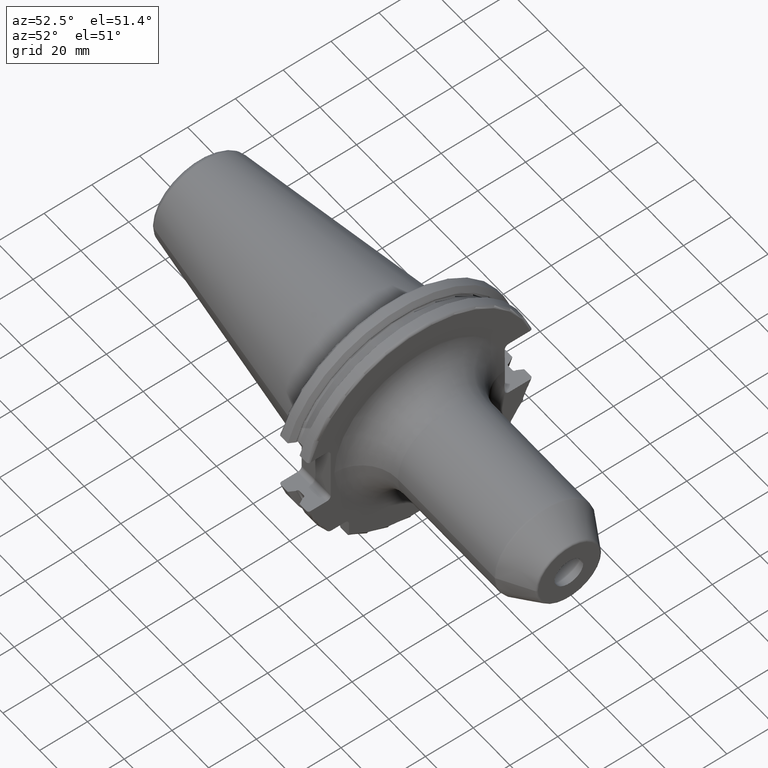
[diagram: clean part render]
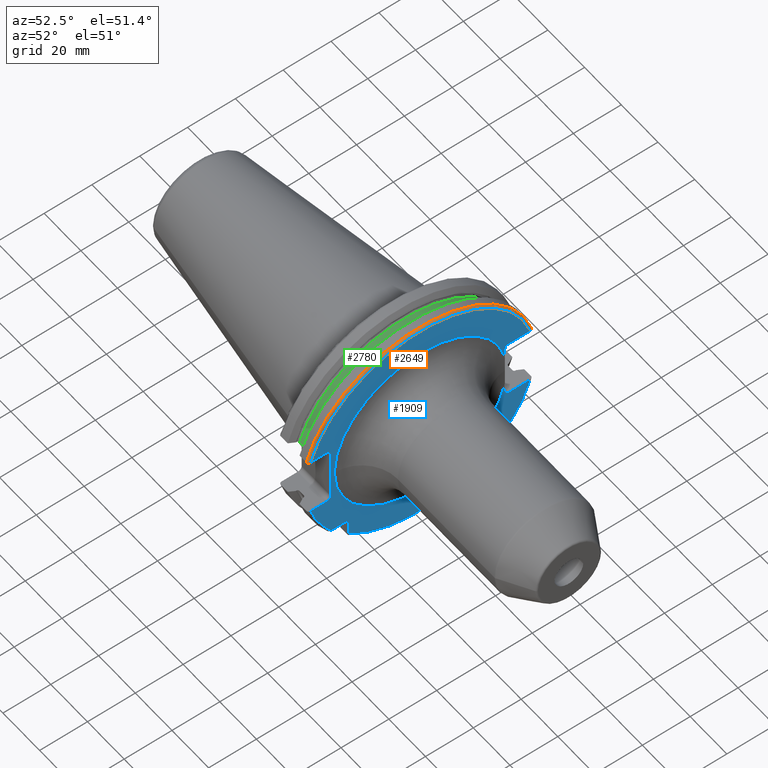
[diagram: same view with three faces highlighted in distinct colors, each labeled with its STEP entity id]
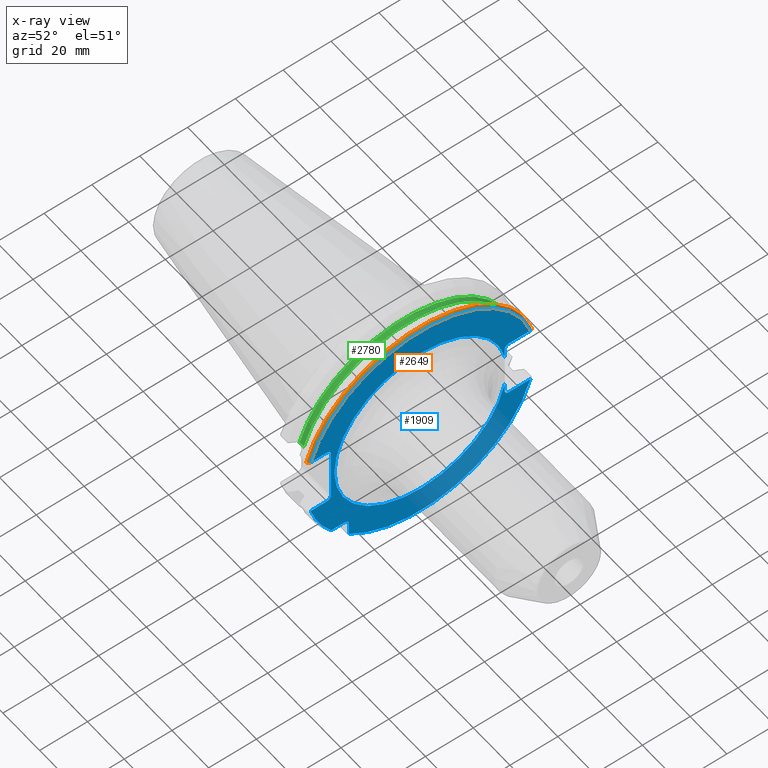
[diagram: x-ray of the same camera — body ghosted, the three highlighted faces saturated]
A machine part, auxiliary view with three faces highlighted in distinct colors.
The next image is the same camera in x-ray (body ghosted, the three faces saturated) — at least one of them is partly hidden behind the body in this view.
Their STEP definitions:

[orange] entity #2649 — the highlighted toroidal blend (fillet) surface has major radius 47.7375 mm and minor (blend) radius 1 mm.
#799=CARTESIAN_POINT('',(1.905E1,4.596149373389E1,1.29E1));
#800=CARTESIAN_POINT('',(1.905E1,4.604025341545E1,1.29E1));
#801=CARTESIAN_POINT('',(1.903319704314E1,4.619325673207E1,1.29E1));
#802=CARTESIAN_POINT('',(1.895943574721E1,4.641382557540E1,1.29E1));
#803=CARTESIAN_POINT('',(1.884029019608E1,4.661163569902E1,1.29E1));
#804=CARTESIAN_POINT('',(1.868162992187E1,4.677744958982E1,1.29E1));
#805=CARTESIAN_POINT('',(1.849033887272E1,4.690323680095E1,1.29E1));
#806=CARTESIAN_POINT('',(1.827565953653E1,4.698148434228E1,1.29E1));
#807=CARTESIAN_POINT('',(1.812673203795E1,4.699929686974E1,1.29E1));
#808=CARTESIAN_POINT('',(1.805E1,4.699929686974E1,1.29E1));
#810=CARTESIAN_POINT('',(1.905E1,0.E0,0.E0));
#811=DIRECTION('',(1.E0,0.E0,0.E0));
#812=DIRECTION('',(0.E0,9.627964123359E-1,2.702278083268E-1));
#813=AXIS2_PLACEMENT_3D('',#810,#811,#812);
#815=CARTESIAN_POINT('',(1.805E1,-4.699929686974E1,1.29E1));
#816=CARTESIAN_POINT('',(1.812676342368E1,-4.699929686974E1,1.29E1));
#817=CARTESIAN_POINT('',(1.827575329770E1,-4.698147245914E1,1.29E1));
#818=CARTESIAN_POINT('',(1.849056832427E1,-4.690313408822E1,1.29E1));
#819=CARTESIAN_POINT('',(1.868190698842E1,-4.677722381974E1,1.29E1));
#820=CARTESIAN_POINT('',(1.884050497536E1,-4.661134760606E1,1.29E1));
#821=CARTESIAN_POINT('',(1.895953365851E1,-4.641358752589E1,1.29E1));
#822=CARTESIAN_POINT('',(1.903320906929E1,-4.619315655817E1,1.29E1));
#823=CARTESIAN_POINT('',(1.905E1,-4.604021961607E1,1.29E1));
#824=CARTESIAN_POINT('',(1.905E1,-4.596149373389E1,1.29E1));
#843=CARTESIAN_POINT('',(1.805E1,0.E0,0.E0));
#844=DIRECTION('',(1.E0,0.E0,0.E0));
#845=DIRECTION('',(0.E0,9.643354064066E-1,2.646832521159E-1));
#846=AXIS2_PLACEMENT_3D('',#843,#844,#845);
#1541=CARTESIAN_POINT('',(1.805E1,4.699929686974E1,1.29E1));
#1542=VERTEX_POINT('',#1541);
#1545=CARTESIAN_POINT('',(1.805E1,-4.699929686974E1,1.29E1));
#1546=VERTEX_POINT('',#1545);
#1558=VERTEX_POINT('',#799);
#1559=VERTEX_POINT('',#824);
#2637=CARTESIAN_POINT('',(1.805E1,0.E0,0.E0));
#2638=DIRECTION('',(1.E0,0.E0,0.E0));
#2639=DIRECTION('',(0.E0,-1.E0,0.E0));
#2640=AXIS2_PLACEMENT_3D('',#2637,#2638,#2639);
#2641=TOROIDAL_SURFACE('',#2640,4.77375E1,1.E0);
#2642=ORIENTED_EDGE('',*,*,#2600,.F.);
#2643=ORIENTED_EDGE('',*,*,#1898,.T.);
#2644=ORIENTED_EDGE('',*,*,#2263,.F.);
#2646=ORIENTED_EDGE('',*,*,#2645,.F.);
#2647=EDGE_LOOP('',(#2642,#2643,#2644,#2646));
#2648=FACE_OUTER_BOUND('',#2647,.F.);
#2649=ADVANCED_FACE('',(#2648),#2641,.T.);
#809=B_SPLINE_CURVE_WITH_KNOTS('',3,(#799,#800,#801,#802,#803,#804,#805,#806,
#807,#808),.UNSPECIFIED.,.F.,.F.,(4,1,1,1,1,1,1,4),(0.E0,1.428571428571E-1,
2.857142857143E-1,4.285714285714E-1,5.714285714286E-1,7.142857142857E-1,
8.571428571429E-1,1.E0),.UNSPECIFIED.);
#814=CIRCLE('',#813,4.77375E1);
#825=B_SPLINE_CURVE_WITH_KNOTS('',3,(#815,#816,#817,#818,#819,#820,#821,#822,
#823,#824),.UNSPECIFIED.,.F.,.F.,(4,1,1,1,1,1,1,4),(0.E0,1.428571428571E-1,
2.857142857143E-1,4.285714285714E-1,5.714285714286E-1,7.142857142857E-1,
8.571428571429E-1,1.E0),.UNSPECIFIED.);
#847=CIRCLE('',#846,4.87375E1);
#1898=EDGE_CURVE('',#1558,#1559,#814,.T.);
#2263=EDGE_CURVE('',#1546,#1559,#825,.T.);
#2600=EDGE_CURVE('',#1558,#1542,#809,.T.);
#2645=EDGE_CURVE('',#1542,#1546,#847,.T.);

[blue] entity #1909 — the highlighted planar face has unit normal (1, 0, 0).
#130=CARTESIAN_POINT('',(1.905E1,0.E0,0.E0));
#131=DIRECTION('',(1.E0,0.E0,0.E0));
#132=DIRECTION('',(0.E0,-1.E0,0.E0));
#133=AXIS2_PLACEMENT_3D('',#130,#131,#132);
#135=DIRECTION('',(0.E0,1.519625490271E-6,-9.999999999988E-1));
#136=VECTOR('',#135,4.084749348897E0);
#137=CARTESIAN_POINT('',(1.905E1,3.529999379271E1,-7.065250651108E0));
#138=LINE('',#137,#136);
#139=DIRECTION('',(0.E0,-1.E0,0.E0));
#140=VECTOR('',#139,8.911493733886E0);
#141=CARTESIAN_POINT('',(1.905E1,4.596149373389E1,-1.29E1));
#142=LINE('',#141,#140);
#143=DIRECTION('',(0.E0,0.E0,1.E0));
#144=VECTOR('',#143,5.653810627237E0);
#145=CARTESIAN_POINT('',(1.905E1,-2.985E1,-3.725381062724E1));
#146=LINE('',#145,#144);
#147=DIRECTION('',(0.E0,-1.E0,0.E0));
#148=VECTOR('',#147,5.653810627237E0);
#149=CARTESIAN_POINT('',(1.905E1,-3.16E1,-2.985E1));
#150=LINE('',#149,#148);
#151=DIRECTION('',(0.E0,1.E0,0.E0));
#152=VECTOR('',#151,6.711493733886E0);
#153=CARTESIAN_POINT('',(1.905E1,-4.596149373389E1,-1.29E1));
#154=LINE('',#153,#152);
#155=DIRECTION('',(0.E0,0.E0,1.E0));
#156=VECTOR('',#155,2.23E1);
#157=CARTESIAN_POINT('',(1.905E1,-3.75E1,-1.115E1));
#158=LINE('',#157,#156);
#159=DIRECTION('',(0.E0,1.E0,0.E0));
#160=VECTOR('',#159,6.711493733886E0);
#161=CARTESIAN_POINT('',(1.905E1,-4.596149373389E1,1.29E1));
#162=LINE('',#161,#160);
#163=DIRECTION('',(0.E0,-1.E0,0.E0));
#164=VECTOR('',#163,8.911493733886E0);
#165=CARTESIAN_POINT('',(1.905E1,4.596149373389E1,1.29E1));
#166=LINE('',#165,#164);
#167=DIRECTION('',(0.E0,7.373400138712E-7,-9.999999999997E-1));
#168=VECTOR('',#167,4.085116584148E0);
#169=CARTESIAN_POINT('',(1.905E1,3.53E1,1.115E1));
#170=LINE('',#169,#168);
#171=CARTESIAN_POINT('',(1.905E1,0.E0,0.E0));
#172=DIRECTION('',(1.E0,0.E0,0.E0));
#173=DIRECTION('',(0.E0,9.805523887173E-1,1.962575170046E-1));
#174=AXIS2_PLACEMENT_3D('',#171,#172,#173);
#431=CARTESIAN_POINT('',(1.905E1,3.705E1,-1.115E1));
#432=DIRECTION('',(-1.E0,0.E0,0.E0));
#433=DIRECTION('',(0.E0,0.E0,-1.E0));
#434=AXIS2_PLACEMENT_3D('',#431,#432,#433);
#500=CARTESIAN_POINT('',(1.905E1,-3.925E1,1.115E1));
#501=DIRECTION('',(-1.E0,0.E0,0.E0));
#502=DIRECTION('',(0.E0,0.E0,1.E0));
#503=AXIS2_PLACEMENT_3D('',#500,#501,#502);
#518=CARTESIAN_POINT('',(1.905E1,-3.925E1,-1.115E1));
#519=DIRECTION('',(-1.E0,0.E0,0.E0));
#520=DIRECTION('',(0.E0,1.E0,0.E0));
#521=AXIS2_PLACEMENT_3D('',#518,#519,#520);
#541=CARTESIAN_POINT('',(1.905E1,4.596149373389E1,-1.29E1));
#553=CARTESIAN_POINT('',(1.905E1,0.E0,0.E0));
#554=DIRECTION('',(-1.E0,0.E0,0.E0));
#555=DIRECTION('',(0.E0,9.627964123359E-1,-2.702278083268E-1));
#556=AXIS2_PLACEMENT_3D('',#553,#554,#555);
#558=CARTESIAN_POINT('',(1.905E1,-4.596149373389E1,-1.29E1));
#569=CARTESIAN_POINT('',(1.905E1,0.E0,0.E0));
#570=DIRECTION('',(-1.E0,0.E0,0.E0));
#571=DIRECTION('',(0.E0,-7.803888060170E-1,-6.252945797329E-1));
#572=AXIS2_PLACEMENT_3D('',#569,#570,#571);
#583=CARTESIAN_POINT('',(1.905E1,-3.725381062724E1,-2.985E1));
#704=CARTESIAN_POINT('',(1.905E1,-3.16E1,-3.16E1));
#705=DIRECTION('',(-1.E0,0.E0,0.E0));
#706=DIRECTION('',(0.E0,0.E0,1.E0));
#707=AXIS2_PLACEMENT_3D('',#704,#705,#706);
#789=CARTESIAN_POINT('',(1.905E1,3.705E1,1.115E1));
#790=DIRECTION('',(-1.E0,0.E0,0.E0));
#791=DIRECTION('',(0.E0,-1.E0,0.E0));
#792=AXIS2_PLACEMENT_3D('',#789,#790,#791);
#799=CARTESIAN_POINT('',(1.905E1,4.596149373389E1,1.29E1));
#810=CARTESIAN_POINT('',(1.905E1,0.E0,0.E0));
#811=DIRECTION('',(1.E0,0.E0,0.E0));
#812=DIRECTION('',(0.E0,9.627964123359E-1,2.702278083268E-1));
#813=AXIS2_PLACEMENT_3D('',#810,#811,#812);
#824=CARTESIAN_POINT('',(1.905E1,-4.596149373389E1,1.29E1));
#1558=VERTEX_POINT('',#799);
#1559=VERTEX_POINT('',#824);
#1562=VERTEX_POINT('',#541);
#1563=VERTEX_POINT('',#558);
#1582=CARTESIAN_POINT('',(1.905E1,-2.985E1,-3.725381062724E1));
#1583=VERTEX_POINT('',#1582);
#1590=CARTESIAN_POINT('',(1.905E1,-3.75E1,-1.115E1));
#1592=VERTEX_POINT('',#1590);
#1594=CARTESIAN_POINT('',(1.905E1,-3.925E1,-1.29E1));
#1596=VERTEX_POINT('',#1594);
#1598=CARTESIAN_POINT('',(1.905E1,-3.925E1,1.29E1));
#1600=VERTEX_POINT('',#1598);
#1602=CARTESIAN_POINT('',(1.905E1,-3.75E1,1.115E1));
#1604=VERTEX_POINT('',#1602);
#1606=CARTESIAN_POINT('',(1.905E1,3.53E1,1.115E1));
#1608=VERTEX_POINT('',#1606);
#1610=CARTESIAN_POINT('',(1.905E1,3.705E1,1.29E1));
#1612=VERTEX_POINT('',#1610);
#1614=CARTESIAN_POINT('',(1.905E1,3.705E1,-1.29E1));
#1616=VERTEX_POINT('',#1614);
#1618=CARTESIAN_POINT('',(1.905E1,3.53E1,-1.115E1));
#1620=VERTEX_POINT('',#1618);
#1622=CARTESIAN_POINT('',(1.905E1,-3.16E1,-2.985E1));
#1623=CARTESIAN_POINT('',(1.905E1,-2.985E1,-3.16E1));
#1624=VERTEX_POINT('',#1622);
#1625=VERTEX_POINT('',#1623);
#1646=CARTESIAN_POINT('',(1.905E1,-3.6E1,0.E0));
#1647=CARTESIAN_POINT('',(1.905E1,3.529970056518E1,-7.066196997595E0));
#1648=VERTEX_POINT('',#1646);
#1649=VERTEX_POINT('',#1647);
#1654=CARTESIAN_POINT('',(1.905E1,3.529988599382E1,7.065270612167E0));
#1655=VERTEX_POINT('',#1654);
#1690=VERTEX_POINT('',#583);
#1866=CARTESIAN_POINT('',(1.905E1,0.E0,0.E0));
#1867=DIRECTION('',(1.E0,0.E0,0.E0));
#1868=DIRECTION('',(0.E0,-1.E0,0.E0));
#1869=AXIS2_PLACEMENT_3D('',#1866,#1867,#1868);
#1870=PLANE('',#1869);
#1872=ORIENTED_EDGE('',*,*,#1871,.T.);
#1873=ORIENTED_EDGE('',*,*,#1844,.T.);
#1875=ORIENTED_EDGE('',*,*,#1874,.F.);
#1877=ORIENTED_EDGE('',*,*,#1876,.F.);
#1879=ORIENTED_EDGE('',*,*,#1878,.T.);
#1881=ORIENTED_EDGE('',*,*,#1880,.T.);
#1883=ORIENTED_EDGE('',*,*,#1882,.F.);
#1885=ORIENTED_EDGE('',*,*,#1884,.T.);
#1887=ORIENTED_EDGE('',*,*,#1886,.T.);
#1889=ORIENTED_EDGE('',*,*,#1888,.T.);
#1891=ORIENTED_EDGE('',*,*,#1890,.F.);
#1893=ORIENTED_EDGE('',*,*,#1892,.T.);
#1895=ORIENTED_EDGE('',*,*,#1894,.F.);
#1897=ORIENTED_EDGE('',*,*,#1896,.F.);
#1899=ORIENTED_EDGE('',*,*,#1898,.F.);
#1901=ORIENTED_EDGE('',*,*,#1900,.T.);
#1903=ORIENTED_EDGE('',*,*,#1902,.F.);
#1904=ORIENTED_EDGE('',*,*,#1850,.T.);
#1906=ORIENTED_EDGE('',*,*,#1905,.T.);
#1907=EDGE_LOOP('',(#1872,#1873,#1875,#1877,#1879,#1881,#1883,#1885,#1887,#1889,
#1891,#1893,#1895,#1897,#1899,#1901,#1903,#1904,#1906));
#1908=FACE_OUTER_BOUND('',#1907,.F.);
#1909=ADVANCED_FACE('',(#1908),#1870,.T.);
#134=CIRCLE('',#133,3.6E1);
#175=CIRCLE('',#174,3.6E1);
#435=CIRCLE('',#434,1.75E0);
#504=CIRCLE('',#503,1.75E0);
#522=CIRCLE('',#521,1.75E0);
#557=CIRCLE('',#556,4.77375E1);
#573=CIRCLE('',#572,4.77375E1);
#708=CIRCLE('',#707,1.75E0);
#793=CIRCLE('',#792,1.75E0);
#814=CIRCLE('',#813,4.77375E1);
#1844=EDGE_CURVE('',#1649,#1620,#138,.T.);
#1850=EDGE_CURVE('',#1608,#1655,#170,.T.);
#1871=EDGE_CURVE('',#1648,#1649,#134,.T.);
#1874=EDGE_CURVE('',#1616,#1620,#435,.T.);
#1876=EDGE_CURVE('',#1562,#1616,#142,.T.);
#1878=EDGE_CURVE('',#1562,#1583,#557,.T.);
#1880=EDGE_CURVE('',#1583,#1625,#146,.T.);
#1882=EDGE_CURVE('',#1624,#1625,#708,.T.);
#1884=EDGE_CURVE('',#1624,#1690,#150,.T.);
#1886=EDGE_CURVE('',#1690,#1563,#573,.T.);
#1888=EDGE_CURVE('',#1563,#1596,#154,.T.);
#1890=EDGE_CURVE('',#1592,#1596,#522,.T.);
#1892=EDGE_CURVE('',#1592,#1604,#158,.T.);
#1894=EDGE_CURVE('',#1600,#1604,#504,.T.);
#1896=EDGE_CURVE('',#1559,#1600,#162,.T.);
#1898=EDGE_CURVE('',#1558,#1559,#814,.T.);
#1900=EDGE_CURVE('',#1558,#1612,#166,.T.);
#1902=EDGE_CURVE('',#1608,#1612,#793,.T.);
#1905=EDGE_CURVE('',#1655,#1648,#175,.T.);

[green] entity #2780 — the highlighted cylindrical surface (partial cylindrical patch) has radius 45.5 mm, axis along (1, 0, 0).
#978=CARTESIAN_POINT('',(1.23375E1,0.E0,0.E0));
#979=DIRECTION('',(1.E0,0.E0,0.E0));
#980=DIRECTION('',(0.E0,9.589673631435E-1,2.835164835165E-1));
#981=AXIS2_PLACEMENT_3D('',#978,#979,#980);
#983=DIRECTION('',(1.E0,0.E0,0.E0));
#984=VECTOR('',#983,2.325E0);
#985=CARTESIAN_POINT('',(1.00125E1,4.363301502303E1,1.29E1));
#986=LINE('',#985,#984);
#987=DIRECTION('',(1.E0,0.E0,0.E0));
#988=VECTOR('',#987,2.325E0);
#989=CARTESIAN_POINT('',(1.00125E1,-4.363301502303E1,1.29E1));
#990=LINE('',#989,#988);
#991=CARTESIAN_POINT('',(1.00125E1,0.E0,0.E0));
#992=DIRECTION('',(1.E0,0.E0,0.E0));
#993=DIRECTION('',(0.E0,9.589673631435E-1,2.835164835165E-1));
#994=AXIS2_PLACEMENT_3D('',#991,#992,#993);
#996=CARTESIAN_POINT('',(1.00125E1,4.363301502303E1,1.29E1));
#1016=CARTESIAN_POINT('',(1.00125E1,-4.363301502303E1,1.29E1));
#1505=VERTEX_POINT('',#996);
#1506=VERTEX_POINT('',#1016);
#1507=CARTESIAN_POINT('',(1.23375E1,4.363301502303E1,1.29E1));
#1508=VERTEX_POINT('',#1507);
#1509=CARTESIAN_POINT('',(1.23375E1,-4.363301502303E1,1.29E1));
#1510=VERTEX_POINT('',#1509);
#2768=CARTESIAN_POINT('',(7.325E0,0.E0,0.E0));
#2769=DIRECTION('',(1.E0,0.E0,0.E0));
#2770=DIRECTION('',(0.E0,-1.E0,0.E0));
#2771=AXIS2_PLACEMENT_3D('',#2768,#2769,#2770);
#2772=CYLINDRICAL_SURFACE('',#2771,4.55E1);
#2773=ORIENTED_EDGE('',*,*,#2610,.T.);
#2774=ORIENTED_EDGE('',*,*,#2763,.T.);
#2775=ORIENTED_EDGE('',*,*,#2253,.F.);
#2777=ORIENTED_EDGE('',*,*,#2776,.F.);
#2778=EDGE_LOOP('',(#2773,#2774,#2775,#2777));
#2779=FACE_OUTER_BOUND('',#2778,.F.);
#2780=ADVANCED_FACE('',(#2779),#2772,.T.);
#982=CIRCLE('',#981,4.55E1);
#995=CIRCLE('',#994,4.55E1);
#2253=EDGE_CURVE('',#1506,#1510,#990,.T.);
#2610=EDGE_CURVE('',#1505,#1508,#986,.T.);
#2763=EDGE_CURVE('',#1508,#1510,#982,.T.);
#2776=EDGE_CURVE('',#1505,#1506,#995,.T.);